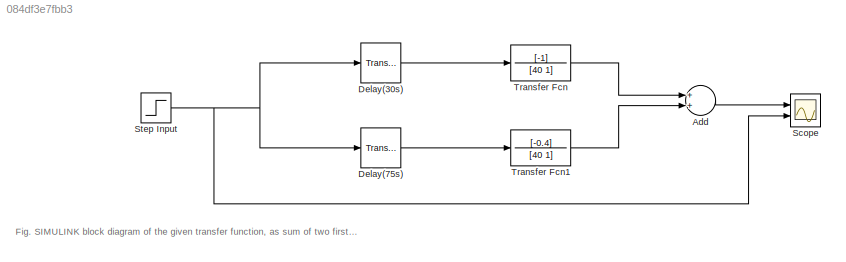
MODEL slx_084df3e7fbb3
KIND model
CONFIG AbsTol = auto
CONFIG EnableMultiTasking = off
CONFIG FixedStep = auto
CONFIG MaxStep = auto
CONFIG MinStep = auto
CONFIG RelTol = 1e-3
CONFIG SampleTimeConstraint = Unconstrained
CONFIG Solver = VariableStepAuto
CONFIG SolverName = VariableStepAuto
CONFIG StartTime = 0.0
CONFIG StopTime = 500
BLOCK [Sum] Add
  InputSameDT = off
  OutDataTypeStr = Inherit: Inherit via internal rule
  Ports = [2, 1]
  SaturateOnIntegerOverflow = off
BLOCK [TransportDelay] Delay(30s)
  DelayTime = 30
  Ports = [1, 1]
BLOCK [TransportDelay] Delay(75s)
  DelayTime = 75
  Ports = [1, 1]
BLOCK [Scope] Scope 
  Floating = off
  NumInputPorts = 2
  Ports = [2]
  ScopeSpecificationString = Simulink.scopes.TimeScopeBlockCfg('CurrentConfiguration', extmgr.ConfigurationSet(extmgr.Configuration('Core','General UI',true),extmgr.Configuration('Core','Source UI',true),extmgr.Configuration('Sources','WiredSimulink',true),extmgr.Configuration('Visuals','Time Domain',true,'SerializedDisplays',{struct('MinYLimReal','-1.69998','MaxYLimReal','1.3','YLabelReal','Response','MinYLimMag','0.00000','...<+1481ch>
BLOCK [Step] Step Input 
  SampleTime = 0
  Time = 5
BLOCK [TransferFcn] Transfer Fcn
  Denominator = [40 1]
  Numerator = [-1]
BLOCK [TransferFcn] Transfer Fcn1
  Denominator = [40 1]
  Numerator = [-0.4]
ANNOTATION (root): Fig. SIMULINK block diagram of the given transfer function, as sum of two first order transfer functions with different delays
LINE Add:1 -> Scope :1
LINE Delay(30s):1 -> Transfer Fcn:1
LINE Delay(75s):1 -> Transfer Fcn1:1
NET Step Input :1 -> Delay(30s):1, Delay(75s):1, Scope :2
LINE Transfer Fcn1:1 -> Add:2
LINE Transfer Fcn:1 -> Add:1
note: NET lines group one-source signal fan-out (src -> all destinations, sorted); 1:1 wires keep LINE
